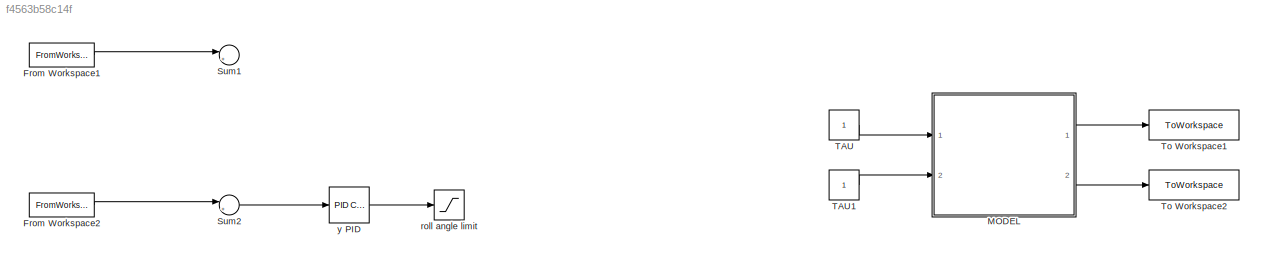
MODEL slx_f4563b58c14f
KIND model
CONFIG AbsTol = auto
CONFIG EnableMultiTasking = off
CONFIG FixedStep = 1
CONFIG MaxStep = 1
CONFIG MinStep = auto
CONFIG RelTol = 1e-3
CONFIG SampleTimeConstraint = Unconstrained
CONFIG Solver = FixedStepDiscrete
CONFIG SolverName = FixedStepDiscrete
CONFIG StartTime = 0.0
CONFIG StopTime = 10.0
BLOCK [FromWorkspace] From Workspace1
  SampleTime = ts
  VariableName = z_target
BLOCK [FromWorkspace] From Workspace2
  SampleTime = ts
  VariableName = y_target
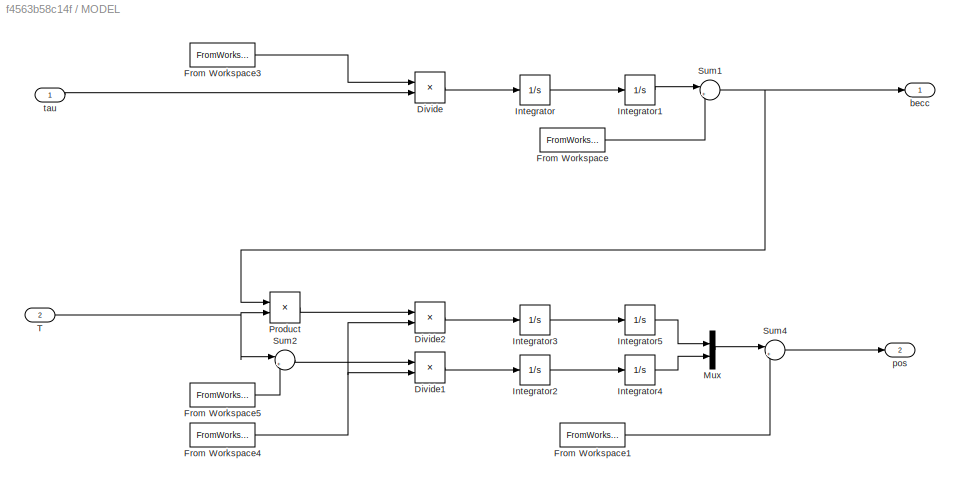
BLOCK [SubSystem] MODEL
  Ports = [2, 2]
  RequestExecContextInheritance = off
BLOCK [Product] MODEL/Divide
  Inputs = */
  Ports = [2, 1]
BLOCK [Product] MODEL/Divide1
  Inputs = */
  Ports = [2, 1]
BLOCK [Product] MODEL/Divide2
  Inputs = */
  Ports = [2, 1]
BLOCK [FromWorkspace] MODEL/From Workspace
  SampleTime = ts
  VariableName = Becc_0
BLOCK [FromWorkspace] MODEL/From Workspace1
  SampleTime = ts
  VariableName = XY_0
BLOCK [FromWorkspace] MODEL/From Workspace3
  SampleTime = ts
  VariableName = I
BLOCK [FromWorkspace] MODEL/From Workspace4
  SampleTime = ts
  VariableName = m
BLOCK [FromWorkspace] MODEL/From Workspace5
  SampleTime = ts
  VariableName = g
BLOCK [Integrator] MODEL/Integrator
  Ports = [1, 1]
BLOCK [Integrator] MODEL/Integrator1
  Ports = [1, 1]
BLOCK [Integrator] MODEL/Integrator2
  Ports = [1, 1]
BLOCK [Integrator] MODEL/Integrator3
  Ports = [1, 1]
BLOCK [Integrator] MODEL/Integrator4
  Ports = [1, 1]
BLOCK [Integrator] MODEL/Integrator5
  Ports = [1, 1]
BLOCK [Mux] MODEL/Mux
  DisplayOption = bar
  Inputs = 2
  Ports = [2, 1]
BLOCK [Product] MODEL/Product
  Ports = [2, 1]
BLOCK [Sum] MODEL/Sum1
  Inputs = |++
  Ports = [2, 1]
BLOCK [Sum] MODEL/Sum2
  Inputs = |++
  Ports = [2, 1]
BLOCK [Sum] MODEL/Sum4
  Inputs = |++
  Ports = [2, 1]
BLOCK [Inport] MODEL/T
  Port = 2
BLOCK [Outport] MODEL/becc
BLOCK [Outport] MODEL/pos
  Port = 2
BLOCK [Inport] MODEL/tau
BLOCK [Sum] Sum1
  Inputs = |+-
  Ports = [2, 1]
BLOCK [Sum] Sum2
  Inputs = |+-
  Ports = [2, 1]
BLOCK [Constant] TAU
BLOCK [Constant] TAU1
BLOCK [ToWorkspace] To Workspace1
  FixptAsFi = on
  MaxDataPoints = inf
  Ports = [1]
  SampleTime = ts
  VariableName = becc
BLOCK [ToWorkspace] To Workspace2
  FixptAsFi = on
  MaxDataPoints = inf
  Ports = [1]
  SampleTime = ts
  VariableName = pos
BLOCK [Saturate] roll angle limit
  LowerLimit = -0.52
  UpperLimit = 0.52
BLOCK [Reference] y PID  REF=simulink/Continuous/PID Controller
  Ports = [1, 1]
  SourceBlock = simulink/Continuous/PID Controller
  SourceProductBaseCode = SL
  SourceType = PID 1dof
LINE From Workspace1:1 -> Sum1:1
LINE From Workspace2:1 -> Sum2:1
LINE MODEL/Divide1:1 -> MODEL/Integrator2:1
LINE MODEL/Divide2:1 -> MODEL/Integrator3:1
LINE MODEL/Divide:1 -> MODEL/Integrator:1
LINE MODEL/From Workspace1:1 -> MODEL/Sum4:2
LINE MODEL/From Workspace3:1 -> MODEL/Divide:1
NET MODEL/From Workspace4:1 -> MODEL/Divide1:2, MODEL/Divide2:2
LINE MODEL/From Workspace5:1 -> MODEL/Sum2:2
LINE MODEL/From Workspace:1 -> MODEL/Sum1:2
LINE MODEL/Integrator1:1 -> MODEL/Sum1:1
LINE MODEL/Integrator2:1 -> MODEL/Integrator4:1
LINE MODEL/Integrator3:1 -> MODEL/Integrator5:1
LINE MODEL/Integrator4:1 -> MODEL/Mux:2
LINE MODEL/Integrator5:1 -> MODEL/Mux:1
LINE MODEL/Integrator:1 -> MODEL/Integrator1:1
LINE MODEL/Mux:1 -> MODEL/Sum4:1
LINE MODEL/Product:1 -> MODEL/Divide2:1
NET MODEL/Sum1:1 -> MODEL/Product:1, MODEL/becc:1
LINE MODEL/Sum2:1 -> MODEL/Divide1:1
LINE MODEL/Sum4:1 -> MODEL/pos:1
NET MODEL/T:1 -> MODEL/Product:2, MODEL/Sum2:1
LINE MODEL/tau:1 -> MODEL/Divide:2
LINE MODEL:1 -> To Workspace1:1
LINE MODEL:2 -> To Workspace2:1
LINE Sum2:1 -> y PID:1
LINE TAU1:1 -> MODEL:2
LINE TAU:1 -> MODEL:1
LINE y PID:1 -> roll angle limit:1
note: NET lines group one-source signal fan-out (src -> all destinations, sorted); 1:1 wires keep LINE
